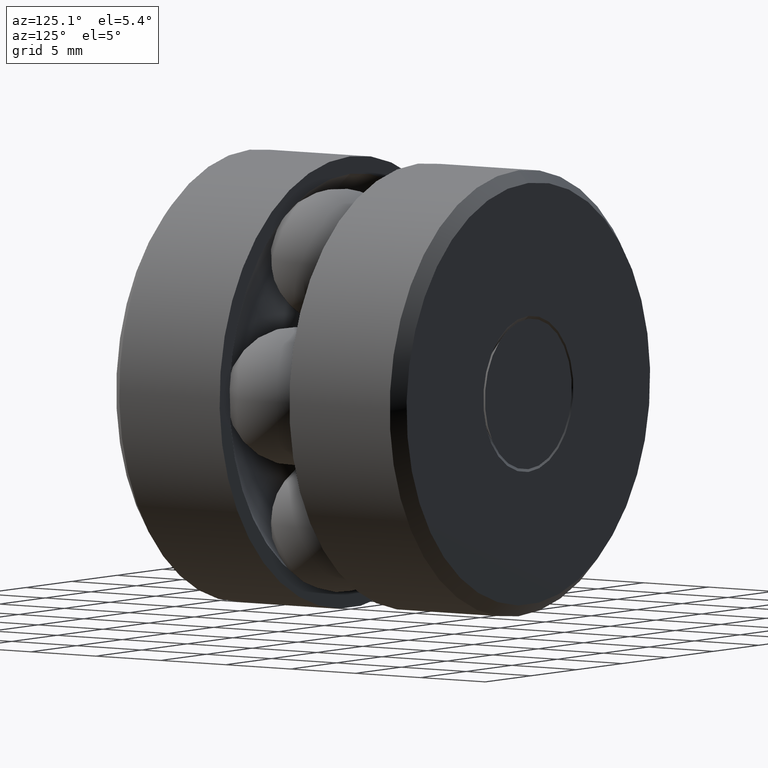
[diagram: clean part render]
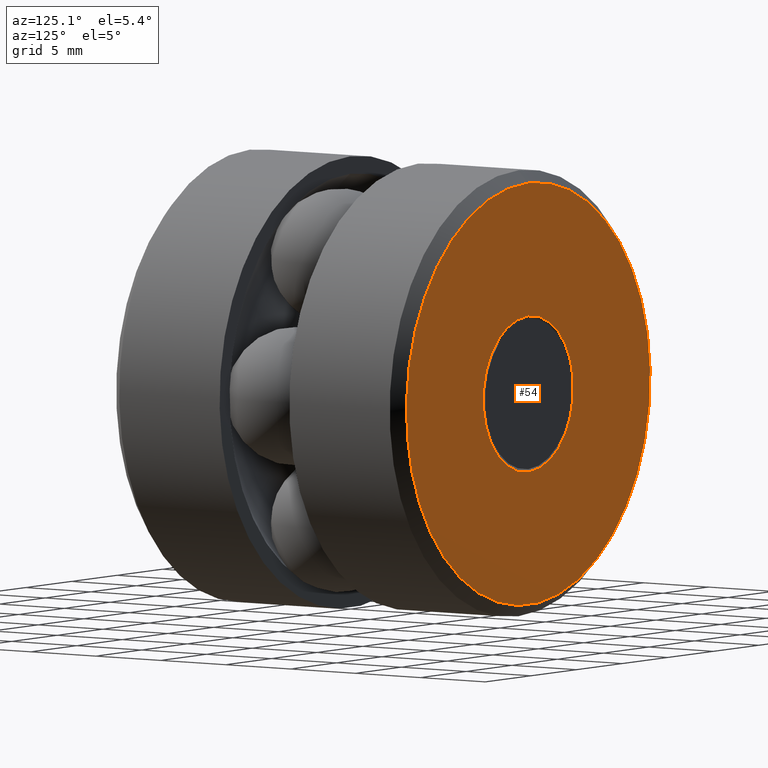
[diagram: same view with one face highlighted and labeled with its STEP entity id]
A machine part, auxiliary view. The second image highlights one B-rep face of the part: STEP entity #54.
In plain terms, the highlighted planar face has unit normal (-0, 1, 0).
Its self-contained STEP definition (entity closure, byte-faithful):
#17 = DIRECTION ( 'NONE',  ( -0.0000000000000000000, 1.000000000000000000, -0.0000000000000000000 ) ) ;
#46 = VERTEX_POINT ( 'NONE', #147 ) ;
#54 = ADVANCED_FACE ( 'NONE', ( #172, #493 ), #151, .T. ) ;
#70 = CIRCLE ( 'NONE', #473, 0.1944460678118644900 ) ;
#73 = ORIENTED_EDGE ( 'NONE', *, *, #319, .F. ) ;
#105 = EDGE_LOOP ( 'NONE', ( #73 ) ) ;
#115 = EDGE_LOOP ( 'NONE', ( #190 ) ) ;
#147 = CARTESIAN_POINT ( 'NONE',  ( 0.0000000000000000000, 0.8749999999999997800, 0.5255000000000003000 ) ) ;
#151 = PLANE ( 'NONE',  #389 ) ;
#172 = FACE_OUTER_BOUND ( 'NONE', #115, .T. ) ;
#173 = CARTESIAN_POINT ( 'NONE',  ( -0.1944460678118644900, 0.8749999999999997800, 0.0000000000000000000 ) ) ;
#190 = ORIENTED_EDGE ( 'NONE', *, *, #438, .T. ) ;
#233 = AXIS2_PLACEMENT_3D ( 'NONE', #353, #467, #357 ) ;
#255 = CARTESIAN_POINT ( 'NONE',  ( 0.0000000000000000000, 0.8750000000000000000, 0.1944460678118644900 ) ) ;
#265 = DIRECTION ( 'NONE',  ( 0.0000000000000000000, 0.0000000000000000000, 1.000000000000000000 ) ) ;
#288 = DIRECTION ( 'NONE',  ( -0.0000000000000000000, 1.000000000000000000, 0.0000000000000000000 ) ) ;
#304 = VERTEX_POINT ( 'NONE', #255 ) ;
#319 = EDGE_CURVE ( 'NONE', #304, #304, #70, .T. ) ;
#353 = CARTESIAN_POINT ( 'NONE',  ( 0.0000000000000000000, 0.8749999999999997800, 0.0000000000000000000 ) ) ;
#357 = DIRECTION ( 'NONE',  ( 0.0000000000000000000, 0.0000000000000000000, 1.000000000000000000 ) ) ;
#389 = AXIS2_PLACEMENT_3D ( 'NONE', #173, #288, #265 ) ;
#390 = CIRCLE ( 'NONE', #233, 0.5255000000000003000 ) ;
#392 = CARTESIAN_POINT ( 'NONE',  ( 0.0000000000000000000, 0.8750000000000000000, 0.0000000000000000000 ) ) ;
#405 = DIRECTION ( 'NONE',  ( 0.0000000000000000000, 0.0000000000000000000, 1.000000000000000000 ) ) ;
#438 = EDGE_CURVE ( 'NONE', #46, #46, #390, .T. ) ;
#467 = DIRECTION ( 'NONE',  ( -0.0000000000000000000, 1.000000000000000000, -0.0000000000000000000 ) ) ;
#473 = AXIS2_PLACEMENT_3D ( 'NONE', #392, #17, #405 ) ;
#493 = FACE_BOUND ( 'NONE', #105, .T. ) ;